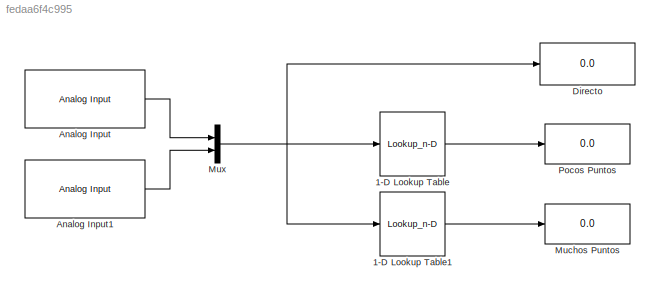
MODEL slx_fedaa6f4c995
KIND model
CONFIG AbsTol = auto
CONFIG EnableMultiTasking = on
CONFIG FixedStep = auto
CONFIG MaxStep = auto
CONFIG MinStep = auto
CONFIG RelTol = 1e-3
CONFIG SampleTimeConstraint = Unconstrained
CONFIG SolverName = FixedStepAuto
CONFIG StartTime = 0.0
CONFIG StopTime = inf
BLOCK [Lookup_n-D] 1-D Lookup Table
  BreakpointsForDimension1 = [197;217;240;266;306;352;427;518;540]
  BreakpointsForDimension1DataTypeStr = double
  ExtrapMethod = Clip
  InputPortMap = u0
  InternalRulePriority = Speed
  NumberOfTableDimensions = 1
  OutDataTypeStr = double
  RndMeth = Simplest
  Table = [30;27;24;21;18;15;12;9;8]
  TableDataTypeStr = double
BLOCK [Lookup_n-D] 1-D Lookup Table1
  BreakpointsForDimension1 = [85;86;93;100;121;133;158;197;217;240;266;306;352;427;518;540]
  BreakpointsForDimension1DataTypeStr = double
  ExtrapMethod = Clip
  InputPortMap = u0
  InternalRulePriority = Speed
  NumberOfTableDimensions = 1
  OutDataTypeStr = double
  RndMeth = Simplest
  Table = [100;90;80;70;60;50;40;30;27;24;21;18;15;12;9;8]
  TableDataTypeStr = double
BLOCK [Reference] Analog Input  REF=arduinolib/Analog Input
  SourceBlock = arduinolib/Analog Input
  SourceType = Arduino Analog Input
BLOCK [Reference] Analog Input1  REF=arduinolib/Analog Input
  SourceBlock = arduinolib/Analog Input
  SourceType = Arduino Analog Input
BLOCK [Display] Directo
  Decimation = 1
BLOCK [Display] Muchos Puntos
  Decimation = 1
BLOCK [Mux] Mux
  DisplayOption = bar
  Inputs = 2
BLOCK [Display] Pocos Puntos
  Decimation = 1
LINE 1-D Lookup Table1:1 -> Muchos Puntos:1
LINE 1-D Lookup Table:1 -> Pocos Puntos:1
LINE Analog Input1:1 -> Mux:2
LINE Analog Input:1 -> Mux:1
NET Mux:1 -> 1-D Lookup Table1:1, 1-D Lookup Table:1, Directo:1
note: NET lines group one-source signal fan-out (src -> all destinations, sorted); 1:1 wires keep LINE
